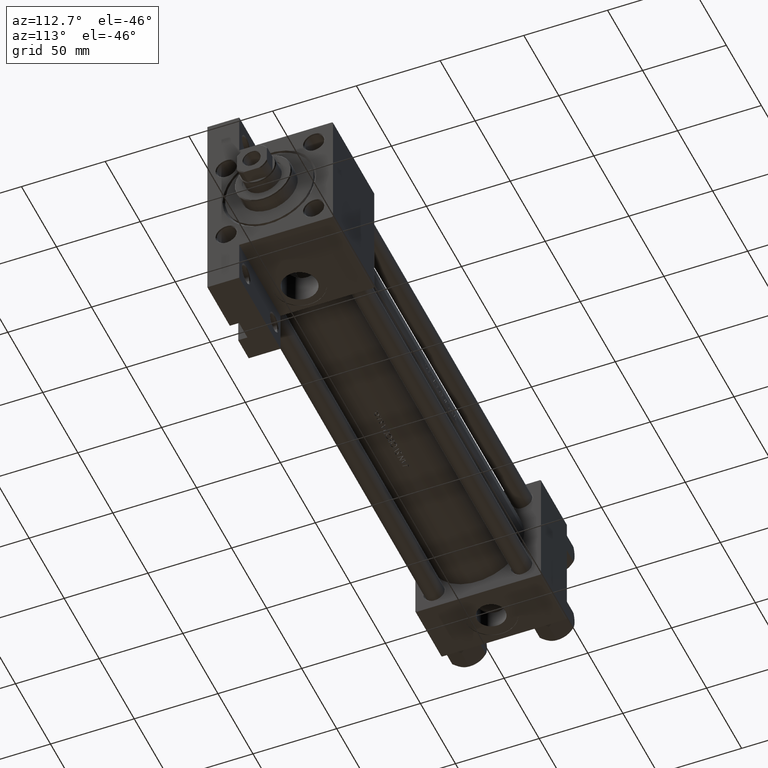
[diagram: clean part render]
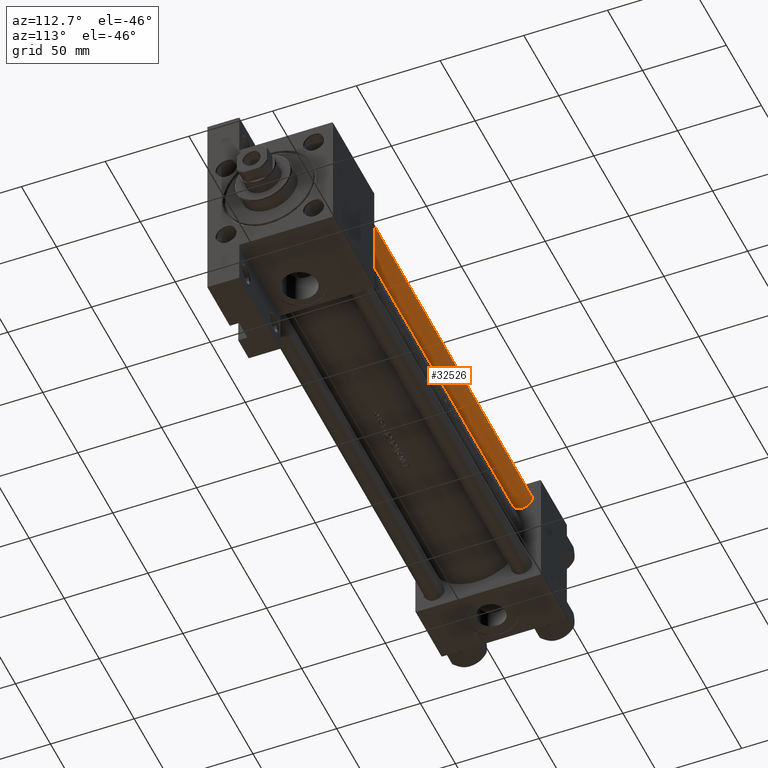
[diagram: same view with one face highlighted and labeled with its STEP entity id]
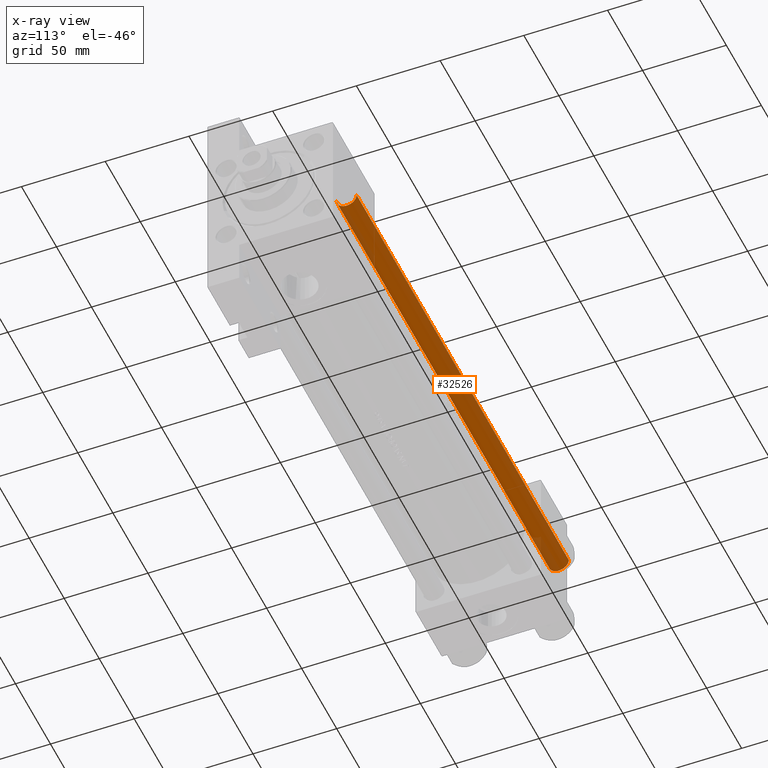
[diagram: x-ray of the same camera — body ghosted, the highlighted face saturated]
A machine part, auxiliary view. The second image highlights one B-rep face of the part: STEP entity #32526.
The next image is the same camera in x-ray: the body ghosted, the highlighted face saturated — about 8% of this face is hidden behind the body in this view.
In plain terms, the highlighted cylindrical surface (edge-blend (fillet) strip) has radius 6 mm, axis along (1, -0, 0).
Its self-contained STEP definition (entity closure, byte-faithful):
#2588 = VERTEX_POINT ( 'NONE', #47530 ) ;
#3340 = VERTEX_POINT ( 'NONE', #30772 ) ;
#3502 = VECTOR ( 'NONE', #45740, 1000.000000000000000 ) ;
#7008 = VERTEX_POINT ( 'NONE', #31028 ) ;
#9866 = CARTESIAN_POINT ( 'NONE',  ( -6.000000000000000888, 0.000000000000000000, 304.0000000000000000 ) ) ;
#10793 = EDGE_LOOP ( 'NONE', ( #17428, #28913, #47279, #14735 ) ) ;
#10837 = DIRECTION ( 'NONE',  ( -0.000000000000000000, -0.000000000000000000, -1.000000000000000000 ) ) ;
#11614 = CYLINDRICAL_SURFACE ( 'NONE', #45381, 6.000000000000000888 ) ;
#14735 = ORIENTED_EDGE ( 'NONE', *, *, #17551, .F. ) ;
#16424 = FACE_OUTER_BOUND ( 'NONE', #10793, .T. ) ;
#16843 = EDGE_CURVE ( 'NONE', #26878, #7008, #21141, .T. ) ;
#17428 = ORIENTED_EDGE ( 'NONE', *, *, #22481, .T. ) ;
#17530 = EDGE_CURVE ( 'NONE', #3340, #26878, #23618, .T. ) ;
#17551 = EDGE_CURVE ( 'NONE', #2588, #7008, #18060, .T. ) ;
#18060 = LINE ( 'NONE', #9866, #23478 ) ;
#20482 = CARTESIAN_POINT ( 'NONE',  ( 0.000000000000000000, 0.000000000000000000, 303.5000000000000000 ) ) ;
#21141 = CIRCLE ( 'NONE', #44976, 6.000000000000000888 ) ;
#22481 = EDGE_CURVE ( 'NONE', #2588, #3340, #26616, .T. ) ;
#23478 = VECTOR ( 'NONE', #10837, 1000.000000000000000 ) ;
#23618 = LINE ( 'NONE', #31074, #3502 ) ;
#26288 = CARTESIAN_POINT ( 'NONE',  ( 0.000000000000000000, 0.000000000000000000, 304.0000000000000000 ) ) ;
#26616 = CIRCLE ( 'NONE', #45819, 6.000000000000000888 ) ;
#26878 = VERTEX_POINT ( 'NONE', #35213 ) ;
#27921 = DIRECTION ( 'NONE',  ( 1.000000000000000000, 0.000000000000000000, 0.000000000000000000 ) ) ;
#28913 = ORIENTED_EDGE ( 'NONE', *, *, #17530, .T. ) ;
#30772 = CARTESIAN_POINT ( 'NONE',  ( 6.000000000000000888, 7.347880794884120722E-16, 303.5000000000000000 ) ) ;
#31028 = CARTESIAN_POINT ( 'NONE',  ( -6.000000000000000888, 0.000000000000000000, 0.4999999999999449329 ) ) ;
#31074 = CARTESIAN_POINT ( 'NONE',  ( 6.000000000000000888, 7.347880794884120722E-16, 304.0000000000000000 ) ) ;
#32526 = ADVANCED_FACE ( 'NONE', ( #16424 ), #11614, .T. ) ;
#34448 = DIRECTION ( 'NONE',  ( 0.000000000000000000, 0.000000000000000000, -1.000000000000000000 ) ) ;
#35213 = CARTESIAN_POINT ( 'NONE',  ( 6.000000000000000888, 7.347880794884120722E-16, 0.4999999999999449329 ) ) ;
#37283 = CARTESIAN_POINT ( 'NONE',  ( 0.000000000000000000, 0.000000000000000000, 0.4999999999999449329 ) ) ;
#40184 = DIRECTION ( 'NONE',  ( 1.000000000000000000, 0.000000000000000000, 0.000000000000000000 ) ) ;
#40421 = DIRECTION ( 'NONE',  ( -0.000000000000000000, -0.000000000000000000, 1.000000000000000000 ) ) ;
#40972 = DIRECTION ( 'NONE',  ( -0.000000000000000000, -0.000000000000000000, -1.000000000000000000 ) ) ;
#43026 = DIRECTION ( 'NONE',  ( -1.000000000000000000, 0.000000000000000000, 0.000000000000000000 ) ) ;
#44976 = AXIS2_PLACEMENT_3D ( 'NONE', #37283, #40421, #40184 ) ;
#45381 = AXIS2_PLACEMENT_3D ( 'NONE', #26288, #40972, #43026 ) ;
#45740 = DIRECTION ( 'NONE',  ( -0.000000000000000000, -0.000000000000000000, -1.000000000000000000 ) ) ;
#45819 = AXIS2_PLACEMENT_3D ( 'NONE', #20482, #34448, #27921 ) ;
#47279 = ORIENTED_EDGE ( 'NONE', *, *, #16843, .T. ) ;
#47530 = CARTESIAN_POINT ( 'NONE',  ( -6.000000000000000888, 0.000000000000000000, 303.5000000000000000 ) ) ;